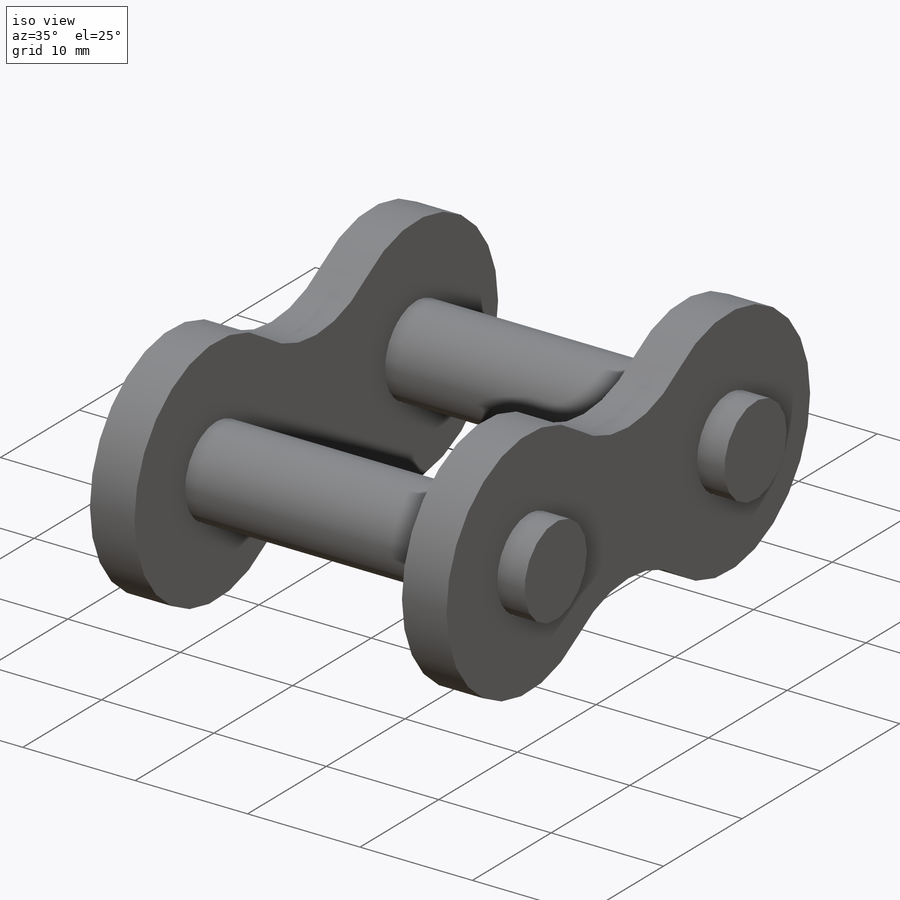
[diagram: iso view]
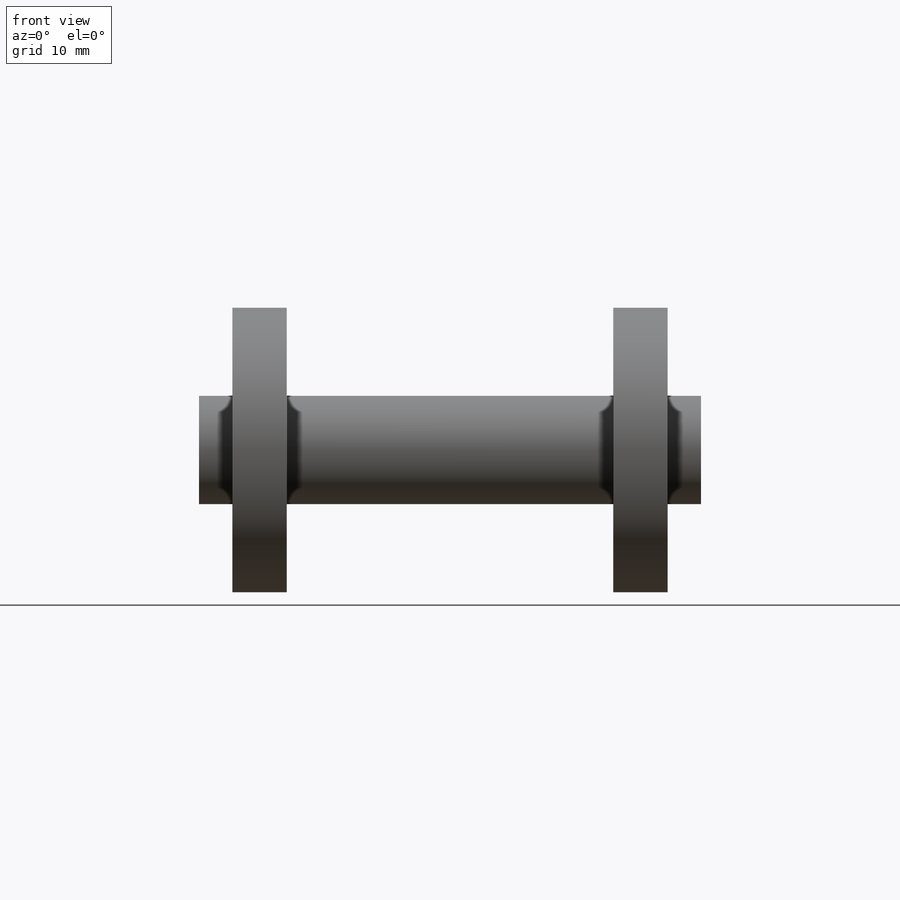
[diagram: front view]
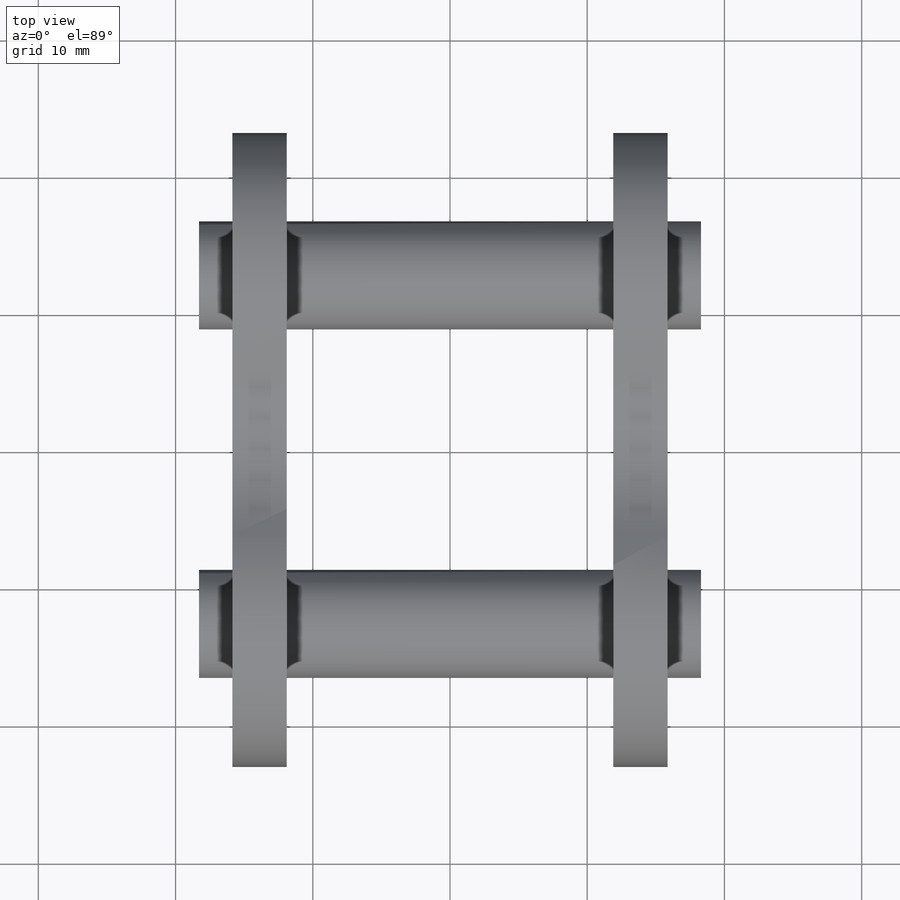
[diagram: top view]
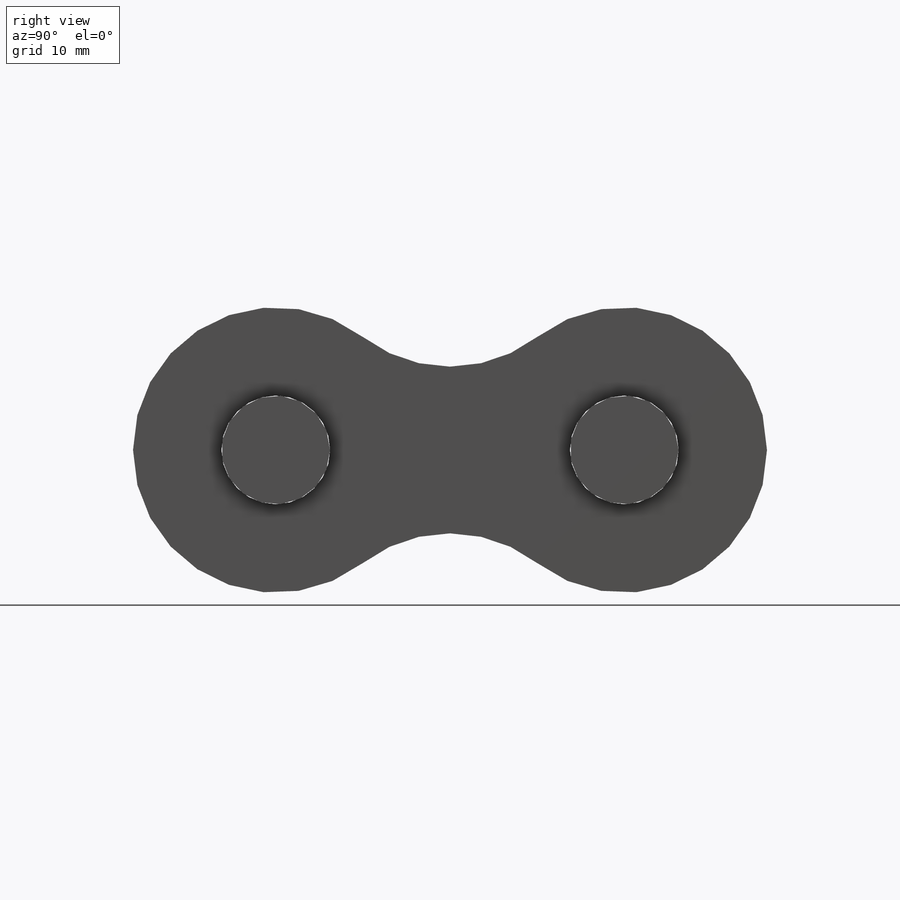
[diagram: right view]
SOLIDWORKS PART (.sldprt)
format: sldprt  version: not decoded by parser v0  size: 909,312 bytes
history: native  units: mm
features: plane x4, extrude x4, sketch x3, material x1 + 1 further entry (+12 scaffold rows collapsed)
feature tree (25):
  scaffold x12  (default folders/planes/origin — collapsed)
  material  "Alloy Steel"
  "Design Table"
  plane  "Back Link Plane"  Offset=9.525mm
  plane  "Front Link Plane"  Offset=9.525mm
  plane  "F/F Pin Plane"  Offset=9.525mm
  plane  "F/B Pin Plane"  Offset=9.525mm
  sketch  "Back Link Sketch"  dims[c1.D1=10.4013mm c1.D=5.9436mm c1.Ho=15.5956mm c2.D1=~10.367471mm c2.Ho-1=7.7978mm c2.D3=~11.737641mm c2.D2=9.0678mm c2.P=19.05mm c2.P-1=9.525mm c2.H9=36.2204mm c2.H-2=36.2204mm c2.H=18.1102mm c2.P-2=~20.48764mm c3.D2=90.0deg c4.D2=15.3543mm c4.D3=~15.343476mm c4.P-3=~20.48764mm c4.Ho-2=15.5956mm c4.Ho-3=15.5956mm c4.D1=~179.862516deg]
  extrude  "Back Link Extrude"  Depth=3.175mm
  sketch  "Front Link Sketch"  dims[D=7.9248mm Ho=24.1046mm Ho-1=~12.094485mm P=25.4mm P-1=12.7mm P-2=~20.48764mm P-3=~20.48764mm D1=0.0mm]
  extrude  "Front Link Extrude"  Depth=3.175mm
  sketch  "Pin Sketch"  dims[R=11.9126mm]
  extrude  "Pin Extrude"  Depth=14.8082mm
  extrude  "Pin Point 2"  [1 undecoded]
decode coverage: 6 of 7 modeling features carry decoded parameters; 1 rows unclassified (native names shown)
note: ~ marks probable driven/reference dimensions
note: 1 parameter value undecoded
note: suppression state not decoded; provenance and decode notes live in map.json
